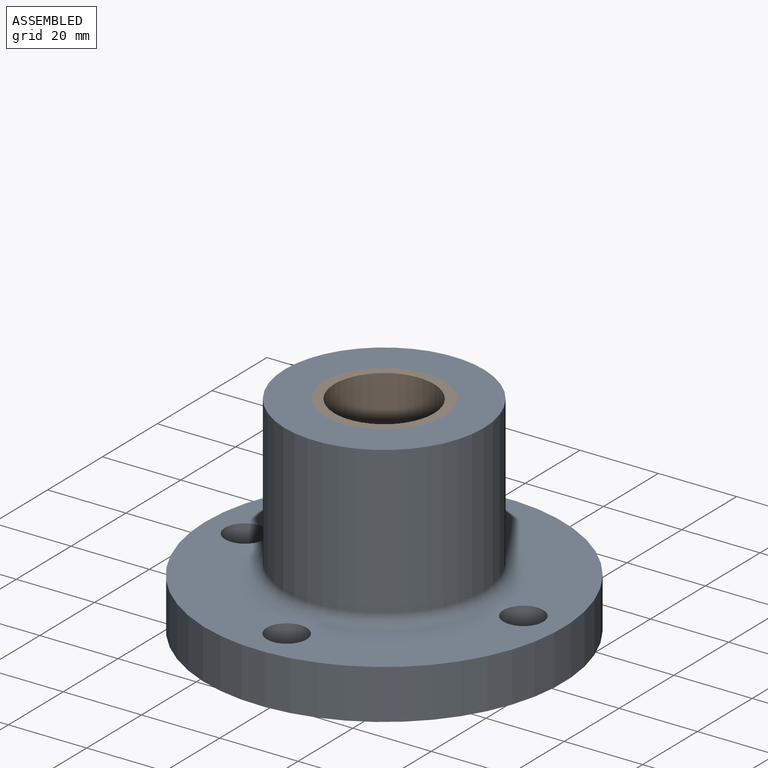
[diagram: assembled view]
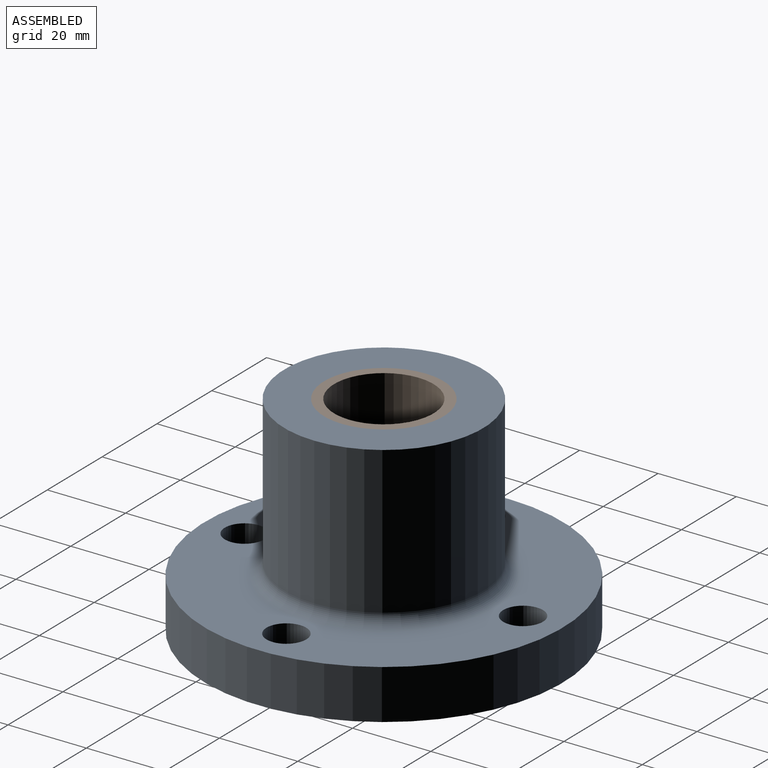
[diagram: assembled view, second angle]
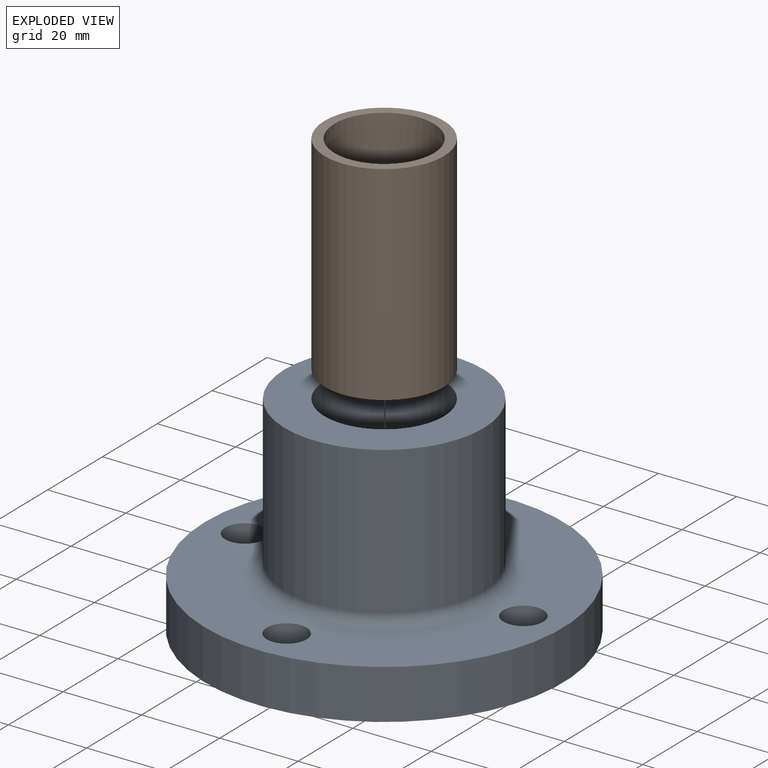
[diagram: exploded view]
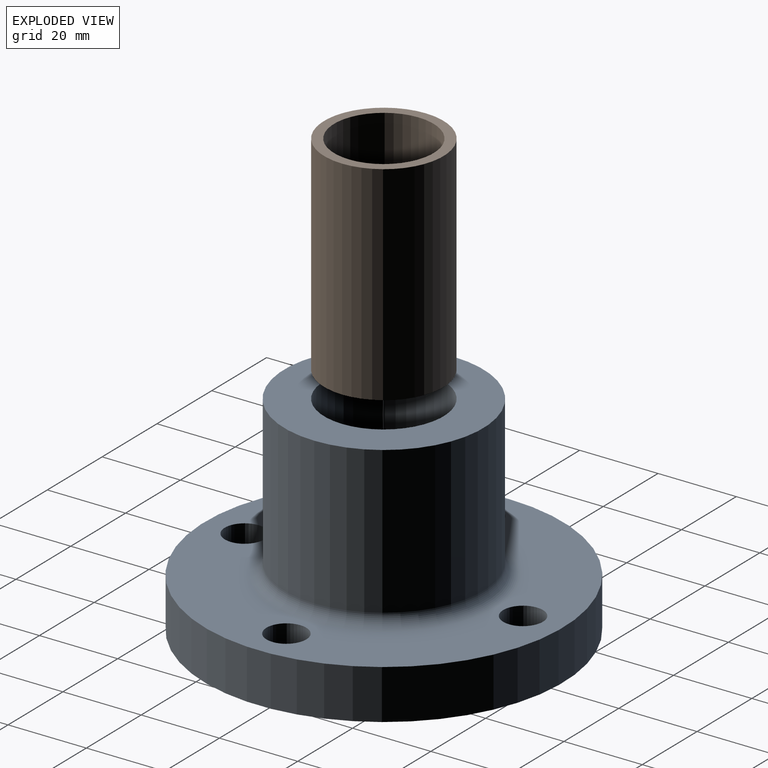
[diagram: exploded view, second angle]
ASSEMBLY  parts=2 mates=2
PART A: 11 faces, bbox 91.4x91.4x53.3 mm
  f0: plane 91.44x91.44mm, normal (0,0,-1), area 5513mm2, adj f1,f6,f7,f8,f9,f10
  f1: cylinder r=45.72mm len=91.44mm, axis (0,0,-1), area 3648.3mm2, adj f0,f2
  f2: plane 91.44x91.44mm, normal (0,0,1), area 3700.2mm2, adj f1,f3,f7,f8,f9,f10
  f3: torus R=28.45mm, axis (0,0,-1), area 797.4mm2, adj f2,f4
  f4: cylinder r=25.4mm len=50.8mm, axis (0,0,-1), area 5999.4mm2, adj f3,f5
  f5: plane 50.8x50.8mm, normal (0,0,1), area 1297.2mm2, adj f4,f6
  f6: cylinder r=15.24mm len=53.34mm, axis (0,0,1), area 5107.6mm2, adj f0,f5
  f7: cylinder r=5.08mm len=12.7mm, axis (0,0,-1), area 405.4mm2, adj f0,f2
  f8: cylinder r=5.08mm len=12.7mm, axis (0,0,-1), area 405.4mm2, adj f0,f2
  f9: cylinder r=5.08mm len=12.7mm, axis (0,0,-1), area 405.4mm2, adj f0,f2
  f10: cylinder r=5.08mm len=12.7mm, axis (0,0,-1), area 405.4mm2, adj f0,f2
PART B: 4 faces, bbox 30.5x30.5x53.3 mm
  f0: cylinder r=15.24mm len=53.34mm, axis (0,0,-1), area 5107.6mm2, adj f1,f2
  f1: plane 30.48x30.48mm, normal (0,0,1), area 223mm2, adj f0,f3
  f2: plane 30.48x30.48mm, normal (0,0,-1), area 223mm2, adj f0,f3
  f3: cylinder r=12.7mm len=53.34mm, axis (0,0,1), area 4256.3mm2, adj f1,f2
PLACE A rot(axis=(-1,0,0),0deg) t=(0,0,0)mm
PLACE B rot(axis=(1,0,0),0deg) t=(0,0,0)mm
MATE slider B.f0 <-> A.f1  axis (0,0,-1) through (0,0,26.67)mm
MATE planar A.f3 <-> B.f0  axis (0,0,1) through (0,0,53.34)mm
